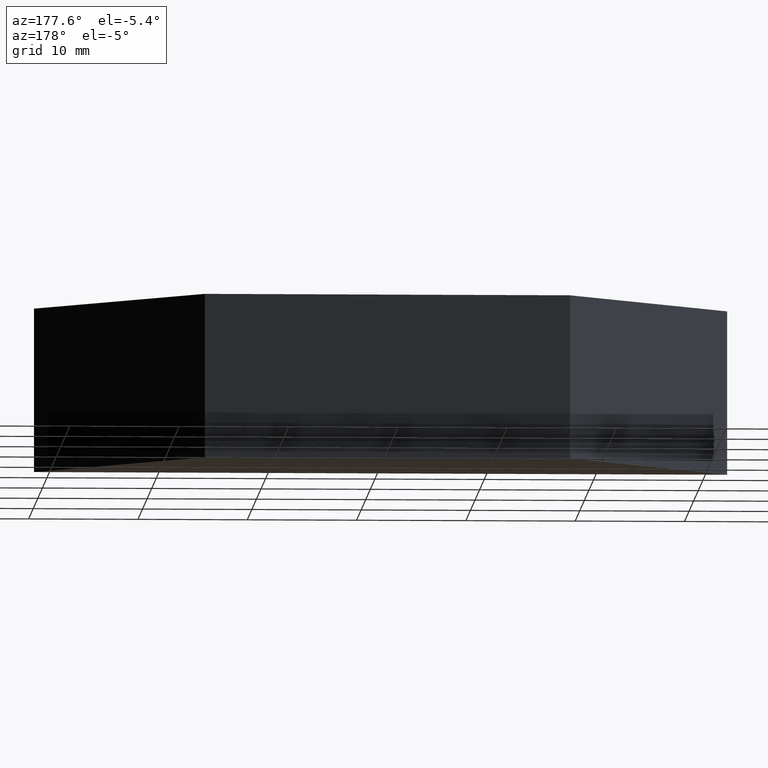
[diagram: clean part render]
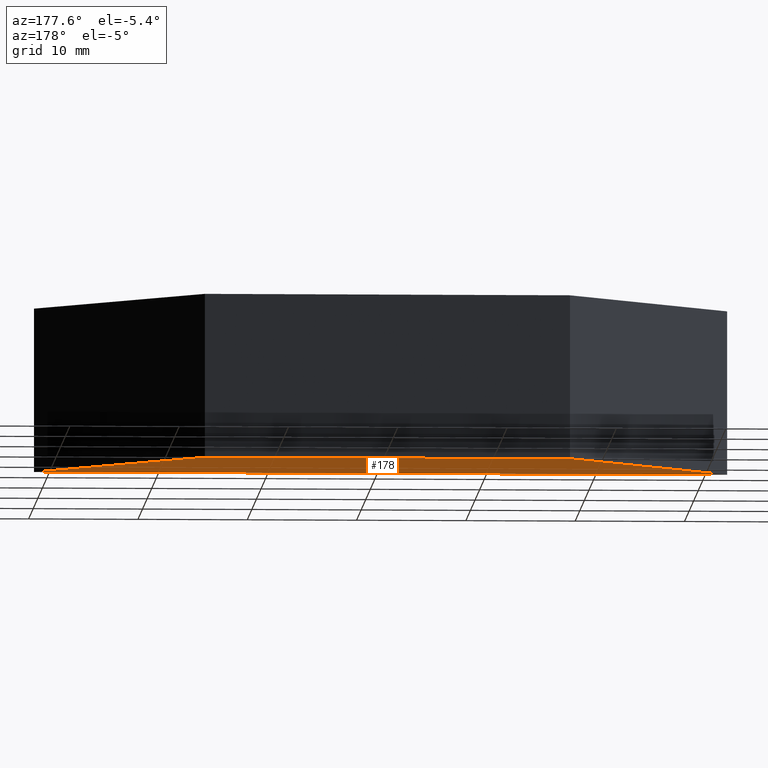
[diagram: same view with one face highlighted and labeled with its STEP entity id]
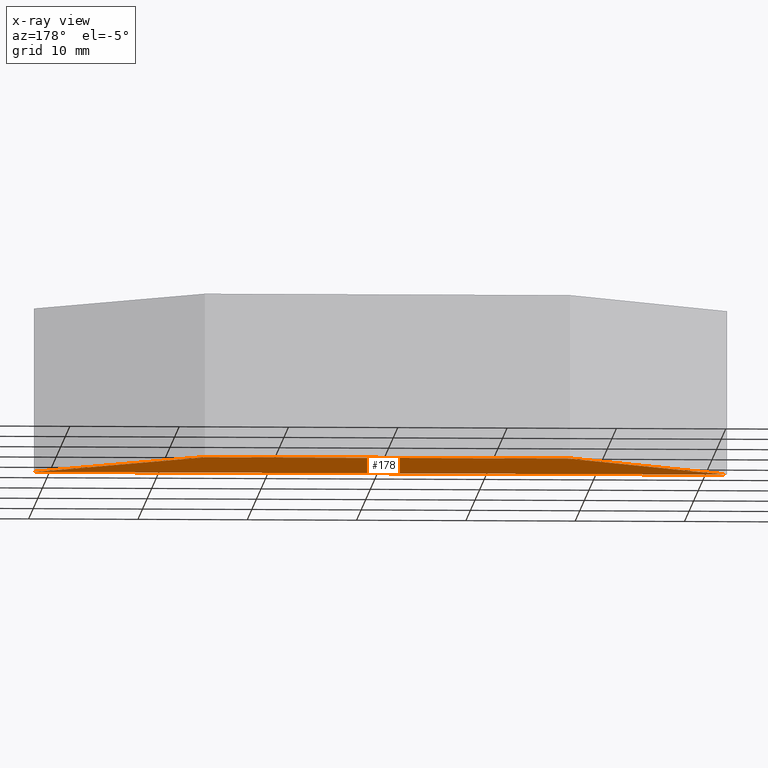
[diagram: x-ray of the same camera — body ghosted, the highlighted face saturated]
A machine part, auxiliary view. The second image highlights one B-rep face of the part: STEP entity #178.
The next image is the same camera in x-ray: the body ghosted, the highlighted face saturated — about 0% of this face is hidden behind the body in this view.
In plain terms, the highlighted planar face has unit normal (0, -0, 1).
Its self-contained STEP definition (entity closure, byte-faithful):
#9 = DIRECTION ( 'NONE',  ( 1.000000000000000000, 0.0000000000000000000, 0.0000000000000000000 ) ) ;
#10 = DIRECTION ( 'NONE',  ( 1.000000000000000000, 0.0000000000000000000, -0.0000000000000000000 ) ) ;
#13 = ORIENTED_EDGE ( 'NONE', *, *, #273, .F. ) ;
#29 = AXIS2_PLACEMENT_3D ( 'NONE', #40, #214, #10 ) ;
#34 = EDGE_CURVE ( 'NONE', #162, #102, #93, .T. ) ;
#35 = DIRECTION ( 'NONE',  ( -0.7071067811865474600, -0.7071067811865474600, -0.0000000000000000000 ) ) ;
#36 = PLANE ( 'NONE',  #29 ) ;
#38 = VECTOR ( 'NONE', #9, 1000.000000000000000 ) ;
#40 = CARTESIAN_POINT ( 'NONE',  ( 0.0000000000000000000, 0.0000000000000000000, 0.0000000000000000000 ) ) ;
#89 = FACE_OUTER_BOUND ( 'NONE', #167, .T. ) ;
#93 = LINE ( 'NONE', #156, #260 ) ;
#99 = EDGE_CURVE ( 'NONE', #136, #142, #177, .T. ) ;
#102 = VERTEX_POINT ( 'NONE', #305 ) ;
#106 = CARTESIAN_POINT ( 'NONE',  ( 57.56530050263808100, 74.88315572825172200, 0.0000000000000000000 ) ) ;
#109 = LINE ( 'NONE', #285, #302 ) ;
#122 = VECTOR ( 'NONE', #261, 1000.000000000000100 ) ;
#124 = ORIENTED_EDGE ( 'NONE', *, *, #34, .F. ) ;
#136 = VERTEX_POINT ( 'NONE', #106 ) ;
#140 = CARTESIAN_POINT ( 'NONE',  ( 120.9653007026382200, 74.88315572825172200, 0.0000000000000000000 ) ) ;
#142 = VERTEX_POINT ( 'NONE', #234 ) ;
#149 = ORIENTED_EDGE ( 'NONE', *, *, #99, .F. ) ;
#156 = CARTESIAN_POINT ( 'NONE',  ( 72.56530050263808100, 89.88315572825170800, 0.0000000000000000000 ) ) ;
#162 = VERTEX_POINT ( 'NONE', #265 ) ;
#167 = EDGE_LOOP ( 'NONE', ( #277, #124, #13, #149 ) ) ;
#177 = LINE ( 'NONE', #280, #38 ) ;
#178 = ADVANCED_FACE ( 'NONE', ( #89 ), #36, .F. ) ;
#187 = DIRECTION ( 'NONE',  ( -1.000000000000000000, -0.0000000000000000000, -0.0000000000000000000 ) ) ;
#188 = LINE ( 'NONE', #140, #122 ) ;
#214 = DIRECTION ( 'NONE',  ( 0.0000000000000000000, -0.0000000000000000000, 1.000000000000000000 ) ) ;
#234 = CARTESIAN_POINT ( 'NONE',  ( 120.9653007026382200, 74.88315572825172200, 0.0000000000000000000 ) ) ;
#255 = EDGE_CURVE ( 'NONE', #102, #136, #109, .T. ) ;
#260 = VECTOR ( 'NONE', #187, 1000.000000000000000 ) ;
#261 = DIRECTION ( 'NONE',  ( -0.7071067811865540100, 0.7071067811865410200, 0.0000000000000000000 ) ) ;
#265 = CARTESIAN_POINT ( 'NONE',  ( 105.9653007026379500, 89.88315572825170800, 0.0000000000000000000 ) ) ;
#273 = EDGE_CURVE ( 'NONE', #142, #162, #188, .T. ) ;
#277 = ORIENTED_EDGE ( 'NONE', *, *, #255, .F. ) ;
#280 = CARTESIAN_POINT ( 'NONE',  ( 57.56530050263808100, 74.88315572825172200, 0.0000000000000000000 ) ) ;
#285 = CARTESIAN_POINT ( 'NONE',  ( 57.56530050263808100, 74.88315572825172200, 0.0000000000000000000 ) ) ;
#302 = VECTOR ( 'NONE', #35, 1000.000000000000100 ) ;
#305 = CARTESIAN_POINT ( 'NONE',  ( 72.56530050263808100, 89.88315572825170800, 0.0000000000000000000 ) ) ;